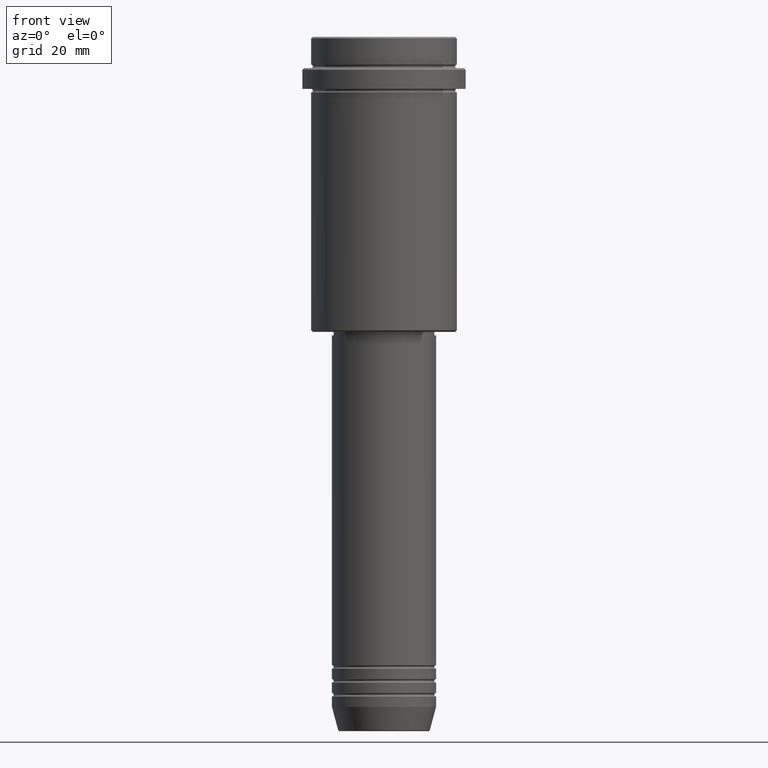
[diagram: clean part render]
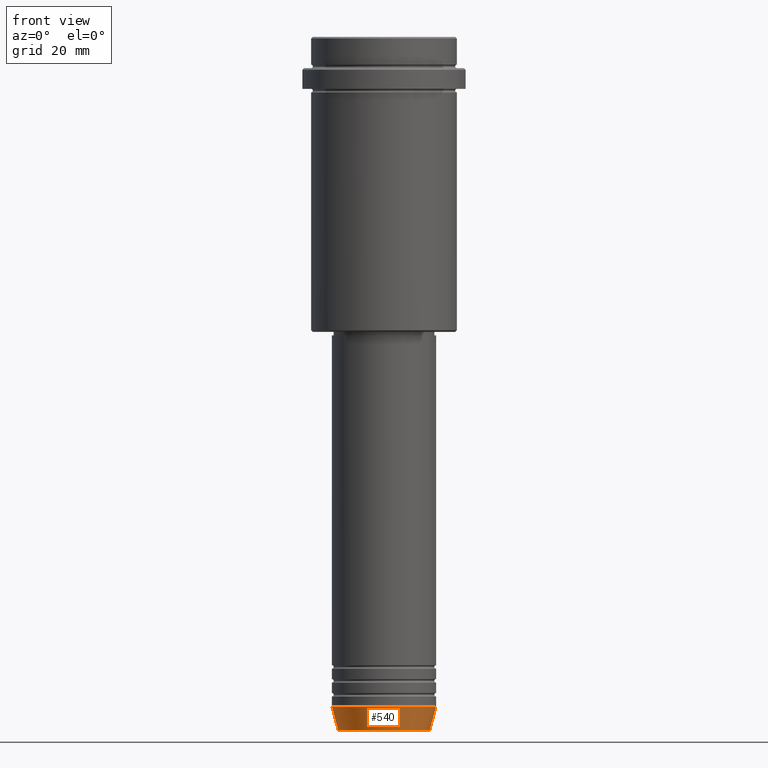
[diagram: same view with one face highlighted and labeled with its STEP entity id]
A machine part, front view. The second image highlights one B-rep face of the part: STEP entity #540.
In plain terms, the highlighted conical surface has half-angle 15 deg.
Its self-contained STEP definition (entity closure, byte-faithful):
#21 = EDGE_CURVE ( 'NONE', #62, #759, #592, .T. ) ;
#62 = VERTEX_POINT ( 'NONE', #238 ) ;
#85 = EDGE_LOOP ( 'NONE', ( #1215, #1273, #1016, #391 ) ) ;
#111 = EDGE_CURVE ( 'NONE', #62, #1222, #1414, .T. ) ;
#156 = CARTESIAN_POINT ( 'NONE',  ( 0.000000000000000000, 0.000000000000000000, -193.0000000000000000 ) ) ;
#238 = CARTESIAN_POINT ( 'NONE',  ( -13.22365507213719660, 1.728200442216588780E-15, -199.6294095225512706 ) ) ;
#289 = CARTESIAN_POINT ( 'NONE',  ( -15.00000000000000000, 1.836970198721029589E-15, -193.0000000000000000 ) ) ;
#357 = DIRECTION ( 'NONE',  ( -0.000000000000000000, -0.000000000000000000, 1.000000000000000000 ) ) ;
#391 = ORIENTED_EDGE ( 'NONE', *, *, #628, .F. ) ;
#451 = CARTESIAN_POINT ( 'NONE',  ( 15.00000000000000000, 0.000000000000000000, -193.0000000000000000 ) ) ;
#483 = DIRECTION ( 'NONE',  ( -0.000000000000000000, -0.000000000000000000, 1.000000000000000000 ) ) ;
#487 = AXIS2_PLACEMENT_3D ( 'NONE', #983, #1204, #534 ) ;
#495 = CARTESIAN_POINT ( 'NONE',  ( -15.00000000000000000, 1.836970198721029589E-15, -193.0000000000000000 ) ) ;
#531 = VECTOR ( 'NONE', #1054, 1000.000000000000000 ) ;
#534 = DIRECTION ( 'NONE',  ( 1.000000000000000000, 0.000000000000000000, 0.000000000000000000 ) ) ;
#540 = ADVANCED_FACE ( 'NONE', ( #1402 ), #1255, .T. ) ;
#551 = CIRCLE ( 'NONE', #692, 15.00000000000000000 ) ;
#564 = VERTEX_POINT ( 'NONE', #451 ) ;
#592 = LINE ( 'NONE', #495, #1325 ) ;
#617 = CARTESIAN_POINT ( 'NONE',  ( 13.22365507213719482, 0.000000000000000000, -199.6294095225512706 ) ) ;
#628 = EDGE_CURVE ( 'NONE', #759, #564, #551, .T. ) ;
#692 = AXIS2_PLACEMENT_3D ( 'NONE', #156, #357, #1338 ) ;
#753 = EDGE_CURVE ( 'NONE', #1222, #564, #841, .T. ) ;
#759 = VERTEX_POINT ( 'NONE', #289 ) ;
#805 = AXIS2_PLACEMENT_3D ( 'NONE', #1033, #483, #914 ) ;
#841 = LINE ( 'NONE', #1250, #531 ) ;
#914 = DIRECTION ( 'NONE',  ( 1.000000000000000000, 0.000000000000000000, 0.000000000000000000 ) ) ;
#983 = CARTESIAN_POINT ( 'NONE',  ( 0.000000000000000000, 0.000000000000000000, -193.0000000000000000 ) ) ;
#1016 = ORIENTED_EDGE ( 'NONE', *, *, #753, .T. ) ;
#1033 = CARTESIAN_POINT ( 'NONE',  ( 0.000000000000000000, 0.000000000000000000, -199.6294095225512706 ) ) ;
#1054 = DIRECTION ( 'NONE',  ( 0.2588190451025213501, 0.000000000000000000, 0.9659258262890680902 ) ) ;
#1204 = DIRECTION ( 'NONE',  ( -0.000000000000000000, -0.000000000000000000, 1.000000000000000000 ) ) ;
#1215 = ORIENTED_EDGE ( 'NONE', *, *, #21, .F. ) ;
#1222 = VERTEX_POINT ( 'NONE', #617 ) ;
#1250 = CARTESIAN_POINT ( 'NONE',  ( 15.00000000000000000, 0.000000000000000000, -193.0000000000000000 ) ) ;
#1255 = CONICAL_SURFACE ( 'NONE', #487, 15.00000000000000000, 0.2617993877991500740 ) ;
#1273 = ORIENTED_EDGE ( 'NONE', *, *, #111, .T. ) ;
#1325 = VECTOR ( 'NONE', #1363, 1000.000000000000000 ) ;
#1338 = DIRECTION ( 'NONE',  ( 1.000000000000000000, 0.000000000000000000, 0.000000000000000000 ) ) ;
#1363 = DIRECTION ( 'NONE',  ( -0.2588190451025213501, 3.169619151431772337E-17, 0.9659258262890680902 ) ) ;
#1402 = FACE_OUTER_BOUND ( 'NONE', #85, .T. ) ;
#1414 = CIRCLE ( 'NONE', #805, 13.22365507213719482 ) ;